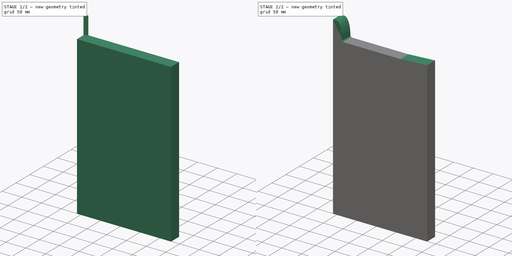
[diagram: build sequence overview — one tinted view per stage of 2, left to right]
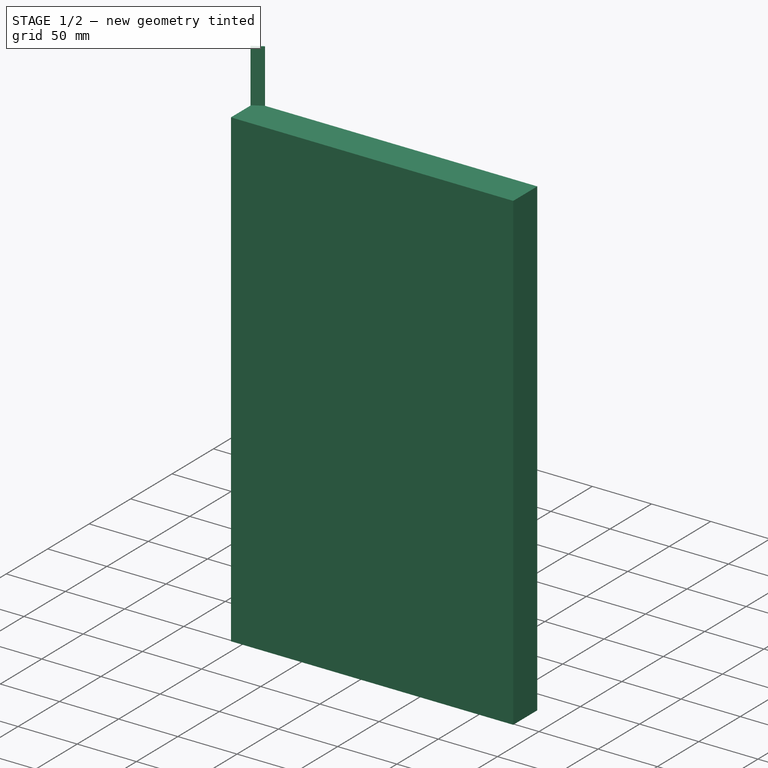
[diagram: stage 1 of 2 — iso view after this stage's code; geometry added in this stage tinted green]
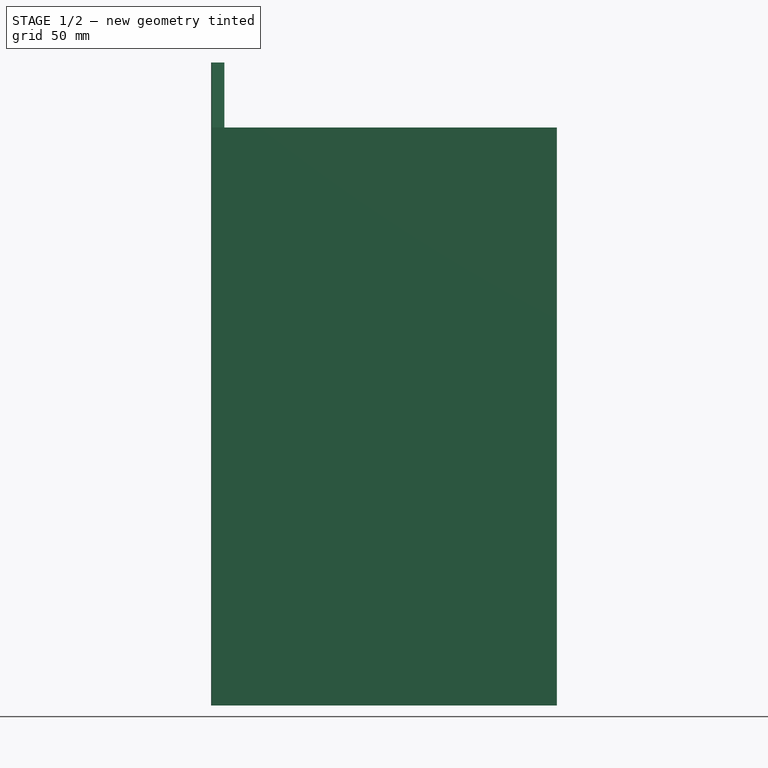
[diagram: stage 1 of 2 — front view after this stage's code; geometry added in this stage tinted green]
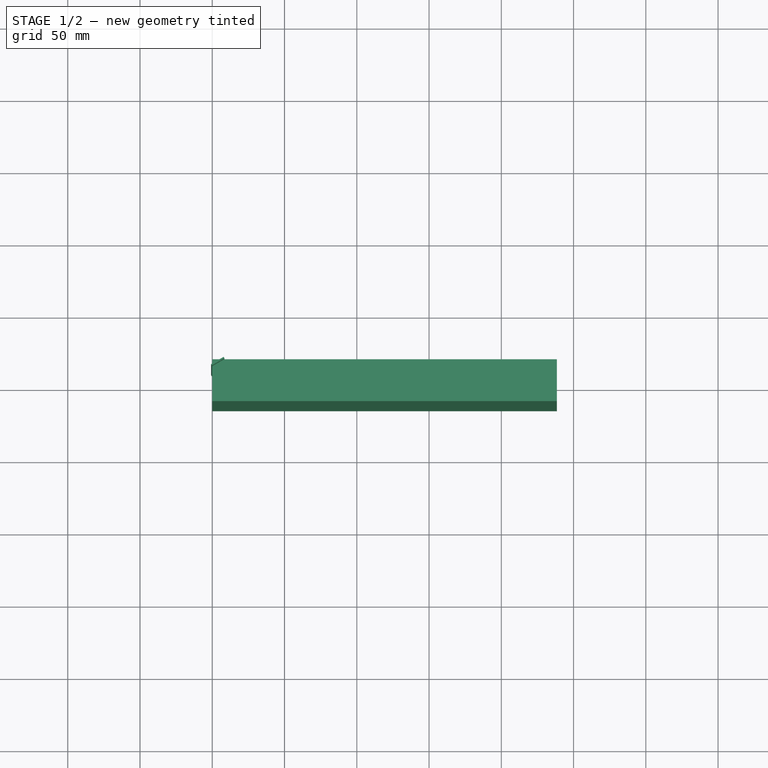
[diagram: stage 1 of 2 — top view after this stage's code; geometry added in this stage tinted green]
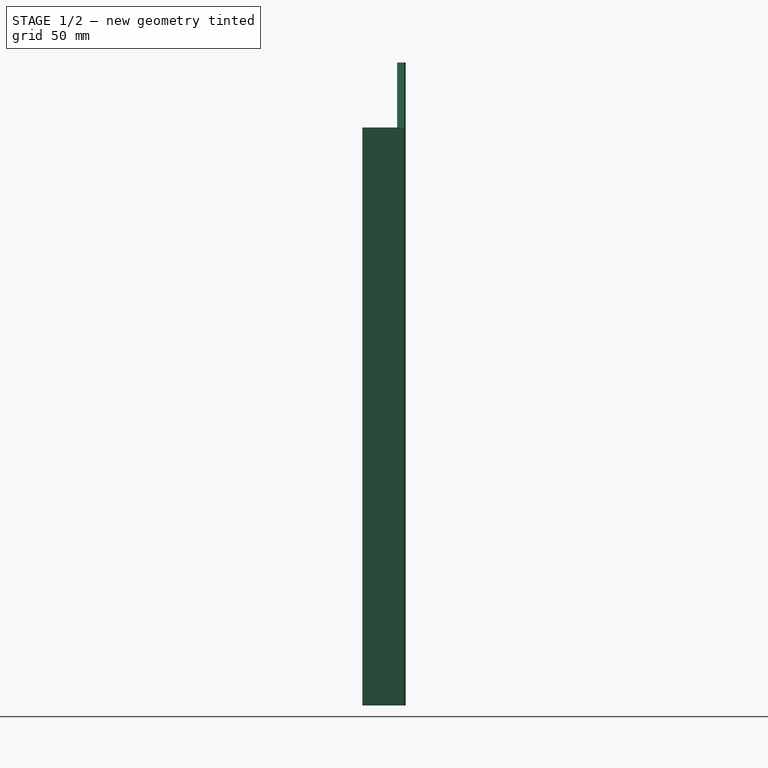
[diagram: stage 1 of 2 — right view after this stage's code; geometry added in this stage tinted green]
FCSTD DOCUMENT  (FreeCAD 1.1R38827 (Git))
Label: composit_stand3_base_part1_main
License: All rights reserved
LicenseURL: http://en.wikipedia.org/wiki/All_rights_reserved
objects: Part::FeaturePython×32, Sketcher::SketchObject×7, App::Link×5, Part::Extrusion×3, PartDesign::SubShapeBinder×2, Part::MultiFuse×1, Part::Feature×1
note: 53 computed .brp shape members not serialized (recipe doc carries the construction recipe); baked Part::Feature solids carry a one-line shape summary decoded from their .brp
EXTERNAL_REF file=composit_stand3_main.FCStd obj=Sketch
EXTERNAL_REF file=composit_stand3_main.FCStd obj=LinearArray
EXTERNAL_REF file=../module.FCStd obj=Sketch
EXTERNAL_REF file=composit_stand3_sink_main.FCStd obj=Sketch001
EXTERNAL_REF file=composit_stand3_bottom_shield_main.FCStd obj=Placment
EXTERNAL_REF file=composit_stand3_bottom_shield_main.FCStd obj=LinearArray
EXTERNAL_REF file=composit_stand3_sink_main.FCStd obj=Sketch005

FEATURE [PartDesign::SubShapeBinder] Binder
  BindCopyOnChange = 0
  BindMode = 0
  ClaimChildren = true
  Fuse = false
  MakeFace = false
  OffsetFill = false
  OffsetIntersection = false
  OffsetJoinType = 0
  OffsetOpenResult = false
  PartialLoad = false
  Relative = false
  Support = -> [<external composit_stand3_main.FCStd>#Sketch]
  _Version = 2
FEATURE [Sketcher::SketchObject] Sketch
  ArcFitTolerance = 0
  ExternalGeometry = -> [Binder]
  FullyConstrained = true
  MakeInternals = false
  sketch-geometry (2):
    g0: LineSegment StartX=8.37158 StartY=14.5 StartZ=0 EndX=4.90748 EndY=14.5 EndZ=0
    g1: LineSegment StartX=4.90748 StartY=14.5 StartZ=0 EndX=-2.59252 EndY=27.4904 EndZ=0
  constraints (7):
    c: Horizontal(g0)
    c: Coincident(g0,g1)
    c: Angle(g1) = 2.0944
    c: Coincident(g0,g-3)
    c: Distance(g0,g1) = 3
    c: Distance(g1) = 15
    c: DistanceX(g0) = 4.90748  'x_offset'
FEATURE [Part::FeaturePython] LinearArray  # WARN: FeaturePython — macro-defined, semantics opaque (R4)
  Alignment = 0
  CellStart = A1
  Count = 11
  Dir = (0,0,-1)
  DirIsDriven = true
  DistributionLaw = 0
  DrivenProperty = 1
  EndInclusive = true
  ExposePlacement = false
  GeneratorMode = 1
  MarkerShape = 1
  MarkerSize = 0
  NumElements = 11
  OrientMode = 0
  Point = (0,0,0)
  PointIsDriven = true
  Reverse = false
  SpanEnd = 827
  SpanStart = 27
  Step = 80
  Type = lattice2LinearArray.LinearArray
  VSGVersion = 1
  Values = 27.0 | 107.0 | 187.0 | 267.0 | 347.0 | 427.0 | 507.0 | 587.0 | 667.0 | 747.0 | 827.0
  ValuesSource = 2
  isLattice = 1
  expr: SpanEnd = Step * (Count - 1) * 1 mm + SpanStart
FEATURE [App::Link] Link  label="modules_placement_x"
  LinkTransform = true
  LinkedObject = -> <external composit_stand3_main.FCStd>#LinearArray
FEATURE [Part::FeaturePython] Placment  label="top_placement"  # WARN: FeaturePython — macro-defined, semantics opaque (R4)
  AttacherType = Attacher::AttachEngine3D
  ExposePlacement = true
  MarkerShape = 1
  MarkerSize = 200
  NumElements = 1
  Placement = pos=(0,0,1428) rot=(0,0,1;0rad)
  Type = lattice2AttachablePlacement.AttachablePlacement
  isLattice = 1
FEATURE [Part::FeaturePython] Populate  label="Populate modules_placement_x with LinearArray"  # WARN: FeaturePython — macro-defined, semantics opaque (R4)
  Copying = 0
  ExposePlacement = false
  MarkerShape = 1
  MarkerSize = 0
  NumElements = 22
  Object = -> LinearArray
  OutputCompounding = 0
  PlacementsTo = -> Link
  Referencing = 0
  Type = lattice2PopulateCopies.LatticePopulateCopies
  isLattice = 1
FEATURE [Part::FeaturePython] Populate001  label="Populate Placment with Populate modules_placement_x with LinearArray"  # WARN: FeaturePython — macro-defined, semantics opaque (R4)
  Copying = 0
  ExposePlacement = false
  MarkerShape = 1
  MarkerSize = 0
  NumElements = 22
  Object = -> Populate
  OutputCompounding = 0
  PlacementsTo = -> Placment
  Referencing = 0
  Type = lattice2PopulateCopies.LatticePopulateCopies
  isLattice = 1
FEATURE [Part::FeaturePython] Placment001  # WARN: FeaturePython — macro-defined, semantics opaque (R4)
  AttacherType = Attacher::AttachEngine3D
  ExposePlacement = true
  MarkerShape = 1
  MarkerSize = 50
  NumElements = 1
  Placement = pos=(0,0,0) rot=(0,0.707107,0.707107;3.14159rad)
  Type = lattice2AttachablePlacement.AttachablePlacement
  isLattice = 1
FEATURE [Part::FeaturePython] Populate002  label="Populate Populate Placment with Populate modules_placement_x with LinearArray with Placment001"  # WARN: FeaturePython — macro-defined, semantics opaque (R4)
  Copying = 0
  ExposePlacement = false
  MarkerShape = 1
  MarkerSize = 0
  NumElements = 22
  Object = -> Placment001
  OutputCompounding = 0
  PlacementsTo = -> Populate001
  Referencing = 0
  Type = lattice2PopulateCopies.LatticePopulateCopies
  isLattice = 1
FEATURE [Part::FeaturePython] Placment002  label="sink_placement"  # WARN: FeaturePython — macro-defined, semantics opaque (R4)
  AttacherType = Attacher::AttachEngine3D
  ExposePlacement = true
  MarkerShape = 1
  MarkerSize = 50
  NumElements = 1
  Placement = pos=(8.37158,14.5,410) rot=(0,0,1;1.0472rad)
  Type = lattice2AttachablePlacement.AttachablePlacement
  isLattice = 1
  expr: .Placement.Base.x = <<composit_stand3_main>>#<<main_sketch>>.Constraints.end_width / 2 / tan(60)
  expr: .Placement.Base.y = <<composit_stand3_main>>#<<main_sketch>>.Constraints.end_width / 2
FEATURE [App::Link] Link001  label="module_holes"
  LinkedObject = -> <external ../module.FCStd>#Sketch
FEATURE [Sketcher::SketchObject] Sketch001  label="basin_cut_top_sketch"
  ArcFitTolerance = 0
  FullyConstrained = true
  MakeInternals = false
  Placement = pos=(0,0,400) rot=(1,0,0;1.5708rad)
  expr: .Placement.Base.z = <<basin_cut_sketch>>.Constraints.height
  expr: Constraints[26] = <<basin_cut_sketch>>.Constraints.length
  expr: Constraints[28] = <<composit_stand3_main>>#<<main_sketch>>.Constraints.x_face_offset + 0.5 mm
  expr: Constraints[30] = <<composit_stand3_sink_main>>#<<side_bottom_edge>>.Constraints.angle
  sketch-geometry (14):
    g0: ArcOfEllipse CenterX=8.87158 CenterY=5 CenterZ=0 NormalX=0 NormalY=0 NormalZ=1 MajorRadius=40 MinorRadius=15 AngleXU=1.5708 StartAngle=4.71239 EndAngle=6.28319
    g1: LineSegment [constr] StartX=8.87158 StartY=45 StartZ=0 EndX=8.87158 EndY=-35 EndZ=0
    g2: LineSegment [constr] StartX=-6.12842 StartY=5 StartZ=0 EndX=23.8716 EndY=5 EndZ=0
    g3: GeomPoint [constr] X=8.87158 Y=42.081 Z=0
    g4: GeomPoint [constr] X=8.87158 Y=-32.081 Z=0
    g5: ArcOfCircle CenterX=28.8716 CenterY=5 CenterZ=0 NormalX=0 NormalY=0 NormalZ=1 AngleXU=0 Radius=5 StartAngle=3.14159 EndAngle=4.71239
    g6: LineSegment StartX=28.8716 StartY=0 StartZ=0 EndX=0 EndY=0 EndZ=0
    g7: LineSegment StartX=0 StartY=0 StartZ=0 EndX=0 EndY=45 EndZ=0
    g8: LineSegment StartX=0 StartY=45 StartZ=0 EndX=8.87158 EndY=45 EndZ=0
    g9: LineSegment StartX=238.446 StartY=3.98838 StartZ=0 EndX=238.446 EndY=0 EndZ=0
    g10: LineSegment StartX=238.446 StartY=0 StartZ=0 EndX=170.25 EndY=0 EndZ=0
    g11: LineSegment StartX=170.836 StartY=0.0172058 StartZ=0 EndX=238.446 EndY=3.98838 EndZ=0
    g12: ArcOfCircle CenterX=170.25 CenterY=10 CenterZ=0 NormalX=0 NormalY=0 NormalZ=1 AngleXU=0 Radius=10 StartAngle=4.71239 EndAngle=4.77106
    g13: LineSegment [constr] StartX=0 StartY=0 StartZ=0 EndX=238.446 EndY=14.0056 EndZ=0
  constraints (31):
    c: InternalAlignment(g1-g4 -> g0) x4
    c: Horizontal(g2)
    c: PointOnObject(g5,g-1)
    c: Tangent(g5,g0) = 1.5708
    c: Coincident(g6,g7)
    c: PointOnObject(g7,g-2)
    c: Vertical(g7)
    c: Coincident(g7,g8)
    c: Horizontal(g8)
    c: Tangent(g8,g0) = 1.5708
    c: Radius(g5) = 5
    c: Tangent(g5,g6) = 1.5708
    c: Horizontal(g6)
    c: DistanceY(g7) = 45  'sink_cut_height'
    c: Horizontal(g0,g0)
    c: DistanceX(g2,g2) = 30
    c: PointOnObject(g10,g-1)
    c: Coincident(g11,g9)
    c: PointOnObject(g9,g-1)
    c: Vertical(g9)
    c: Coincident(g9,g10)
    c: Tangent(g12,g10) = 1.5708
    c: Tangent(g12,g11) = -1.5708
    c: DistanceX(g9) = 238.446
    c: Radius(g12) = 10
    c: DistanceX(g0) = 8.87158
    c: Coincident(g13,g6)
    c: Angle(g13) = 0.0586697
    c: Vertical(g9,g13)
    c: Parallel(g11,g13)
    c: Distance(g9,g13) = 10
FEATURE [Part::FeaturePython] Placment003  label="bottom_fix_placement"  # WARN: FeaturePython — macro-defined, semantics opaque (R4)
  AttacherType = Attacher::AttachEngine3D
  AttachmentOffset = pos=(0,0,0) rot=(0,0,1;1.5708rad)
  ExposePlacement = true
  MarkerShape = 1
  MarkerSize = 50
  NumElements = 1
  Placement = pos=(294.4,0,0) rot=(0,0,1;1.5708rad)
  Type = lattice2AttachablePlacement.AttachablePlacement
  isLattice = 1
FEATURE [Sketcher::SketchObject] Sketch002  label="leg_amplifier"
  ArcFitTolerance = 0
  ExternalGeometry = -> [Binder]
  FullyConstrained = true
  MakeInternals = false
  Placement = pos=(238.046,0,0) rot=(0,0,1;0rad)
  expr: .Placement.Base.x = <<basin_cut_sketch>>.Constraints.length - 0.4 mm
  sketch-geometry (5):
    g0: LineSegment StartX=10 StartY=-14.5 StartZ=0 EndX=0 EndY=-14.5 EndZ=0
    g1: LineSegment StartX=0 StartY=-14.5 StartZ=0 EndX=0 EndY=11.5 EndZ=0
    g2: LineSegment StartX=0 StartY=11.5 StartZ=0 EndX=15 EndY=11.5 EndZ=0
    g3: LineSegment [constr] StartX=113.826 StartY=14.5 StartZ=0 EndX=113.826 EndY=0 EndZ=0
    g4: LineSegment [constr] StartX=113.826 StartY=0 StartZ=0 EndX=113.826 EndY=-14.5 EndZ=0
  constraints (16):
    c: Horizontal(g0)
    c: Coincident(g0,g1)
    c: Vertical(g1)
    c: Coincident(g1,g2)
    c: Horizontal(g2)
    c: DistanceY(g1,g-3) = 3
    c: Coincident(g-3,g3)
    c: PointOnObject(g3,g-1)
    c: Vertical(g3)
    c: Coincident(g3,g4)
    c: Vertical(g4)
    c: Equal(g4,g3)
    c: Horizontal(g4,g0)
    c: DistanceX(g2,g2) = 15
    c: DistanceX(g0,g0) = 10
    c: PointOnObject(g-1,g1)
FEATURE [Part::FeaturePython] LinearArray001  # WARN: FeaturePython — macro-defined, semantics opaque (R4)
  Alignment = 0
  CellStart = A1
  Count = 5
  Dir = (1,0,0)
  DirIsDriven = true
  DistributionLaw = 0
  DrivenProperty = 1
  EndInclusive = true
  ExposePlacement = false
  GeneratorMode = 0
  MarkerShape = 1
  MarkerSize = 0
  NumElements = 5
  OrientMode = 1
  Point = (0,0,0)
  PointIsDriven = true
  Reverse = false
  SpanEnd = 50
  SpanStart = 0
  Step = 12.5
  Type = lattice2LinearArray.LinearArray
  VSGVersion = 1
  Values = 0.0 | 12.5 | 25.0 | 37.5 | 50.0
  ValuesSource = 2
  isLattice = 1
FEATURE [Part::FeaturePython] Placment004  # WARN: FeaturePython — macro-defined, semantics opaque (R4)
  AttacherType = Attacher::AttachEngine3D
  AttachmentOffset = pos=(-3,261,7) rot=(-0.57735,-0.57735,0.57735;2.0944rad)
  AttachmentSupport = -> [Sketch]
  ExposePlacement = true
  MapMode = 7
  MarkerShape = 1
  MarkerSize = 5
  NumElements = 1
  Placement = pos=(-1.6906,19.9282,261) rot=(0.250563,-0.935113,0.250563;1.63783rad)
  Type = lattice2AttachablePlacement.AttachablePlacement
  isLattice = 1
FEATURE [Part::FeaturePython] Populate004  label="Populate Placment004 with LinearArray001"  # WARN: FeaturePython — macro-defined, semantics opaque (R4)
  Copying = 0
  ExposePlacement = false
  MarkerShape = 1
  MarkerSize = 0
  NumElements = 5
  Object = -> LinearArray001
  OutputCompounding = 0
  PlacementsTo = -> Placment004
  Referencing = 0
  Type = lattice2PopulateCopies.LatticePopulateCopies
  isLattice = 1
FEATURE [Sketcher::SketchObject] Sketch003  label="basin_cut_sketch"
  ArcFitTolerance = 0
  FullyConstrained = true
  MakeInternals = false
  Placement = pos=(0,0,0) rot=(1,0,0;1.5708rad)
  expr: .Constraints.length = 206.5 / sin(60)
  sketch-geometry (4):
    g0: LineSegment StartX=0 StartY=0 StartZ=0 EndX=238.446 EndY=0 EndZ=0
    g1: LineSegment StartX=238.446 StartY=0 StartZ=0 EndX=238.446 EndY=400 EndZ=0
    g2: LineSegment StartX=238.446 StartY=400 StartZ=0 EndX=0 EndY=400 EndZ=0
    g3: LineSegment StartX=0 StartY=400 StartZ=0 EndX=0 EndY=0 EndZ=0
  constraints (11):
    c: Coincident(g0,g1)
    c: Coincident(g1,g2)
    c: Coincident(g2,g3)
    c: Coincident(g3,g0)
    c: Horizontal(g0)
    c: Horizontal(g2)
    c: Vertical(g1)
    c: Vertical(g3)
    c: Coincident(g0,g-1)
    c: DistanceY(g3,g3) = 400  'height'
    c: DistanceX(g0,g0) = 238.446  'length'
FEATURE [Part::Extrusion] Extrude001
  Base = -> Sketch003
  Dir = (0,-1,2e-16)
  DirMode = 2
  FaceMakerClass = Part::FaceMakerBullseye
  FaceMakerMode = 3
  LengthFwd = 29
  LengthRev = 0
  Solid = true
  Symmetric = true
  expr: LengthFwd = <<composit_stand3_main>>#<<main_sketch>>.Constraints.end_width
FEATURE [Sketcher::SketchObject] Sketch004
  ArcFitTolerance = 0
  FullyConstrained = true
  MakeInternals = false
  Placement = pos=(8.37158,14.5,0) rot=(0.774597,-0.447214,-0.447214;1.82348rad)
  expr: .Placement.Base.x = composit_stand3_main#<<main_sketch>>.Constraints.x_face_offset
  expr: Constraints[9] = <<basin_cut_sketch>>.Constraints.height + <<basin_cut_top_sketch>>.Constraints.sink_cut_height
  sketch-geometry (4):
    g0: LineSegment StartX=0 StartY=0 StartZ=0 EndX=0 EndY=445 EndZ=0
    g1: LineSegment StartX=0 StartY=445 StartZ=0 EndX=-1 EndY=445 EndZ=0
    g2: LineSegment StartX=-1 StartY=445 StartZ=0 EndX=-1 EndY=0 EndZ=0
    g3: LineSegment StartX=-1 StartY=0 StartZ=0 EndX=0 EndY=0 EndZ=0
  constraints (11):
    c: Coincident(g0,g1)
    c: Coincident(g1,g2)
    c: Coincident(g2,g3)
    c: Coincident(g3,g0)
    c: Vertical(g0)
    c: Vertical(g2)
    c: Horizontal(g1)
    c: Horizontal(g3)
    c: Coincident(g0,g-1)
    c: DistanceY(g0,g0) = 445
    c: DistanceX(g3,g3) = 1
FEATURE [Part::Extrusion] Extrude003
  Base = -> Sketch004
  Dir = (-0.866025,-0.5,2e-16)
  DirMode = 2
  FaceMakerClass = Part::FaceMakerBullseye
  FaceMakerMode = 3
  LengthFwd = 10
  LengthRev = 0
  Solid = true
  Symmetric = false
FEATURE [App::Link] Link002  label="edge_placement"
  LinkTransform = true
  LinkedObject = -> <external composit_stand3_bottom_shield_main.FCStd>#Placment
FEATURE [App::Link] Link003  label="fix_placements"
  LinkTransform = true
  LinkedObject = -> <external composit_stand3_bottom_shield_main.FCStd>#LinearArray
FEATURE [Sketcher::SketchObject] Sketch005  label="shield_fix_hole_sketch"
  ArcFitTolerance = 0
  FullyConstrained = true
  MakeInternals = false
  sketch-geometry (5):
    g0: LineSegment StartX=-3.2 StartY=-26.4022 StartZ=0 EndX=0 EndY=-26.4022 EndZ=0
    g1: LineSegment StartX=0 StartY=-26.4022 StartZ=0 EndX=0 EndY=26.4022 EndZ=0
    g2: LineSegment StartX=0 StartY=26.4022 StartZ=0 EndX=-3.2 EndY=26.4022 EndZ=0
    g3: LineSegment StartX=-3.2 StartY=26.4022 StartZ=0 EndX=-3.2 EndY=-26.4022 EndZ=0
    g4: GeomPoint [constr] X=-1.6 Y=0 Z=0
  constraints (13):
    c: Coincident(g0,g1)
    c: Coincident(g1,g2)
    c: Coincident(g2,g3)
    c: Coincident(g3,g0)
    c: Horizontal(g0)
    c: Horizontal(g2)
    c: Vertical(g1)
    c: Vertical(g3)
    c: Symmetric(g2,g0,g4)
    c: PointOnObject(g4,g-1)
    c: PointOnObject(g1,g-2)
    c: DistanceX(g0,g1) = 3.2
    c: DistanceY(g0,g1) = 52.8044
FEATURE [Part::FeaturePython] Placment005  label="shield_placement"  # WARN: FeaturePython — macro-defined, semantics opaque (R4)
  AttacherType = Attacher::AttachEngine3D
  ExposePlacement = true
  MarkerShape = 1
  MarkerSize = 50
  NumElements = 1
  Placement = pos=(0,0,0) rot=(0,0,1;1.0472rad)
  Type = lattice2AttachablePlacement.AttachablePlacement
  isLattice = 1
FEATURE [Part::FeaturePython] Placment006  label="Custom"  # WARN: FeaturePython — macro-defined, semantics opaque (R4)
  ExposePlacement = true
  FlipZ = false
  Invert = false
  MarkerShape = 1
  MarkerSize = 50
  NumElements = 1
  Placement = pos=(0,0,0) rot=(0.774597,0.447214,0.447214;1.82348rad)
  PlacementChoice = 0
  Type = lattice2Placement.LatticePlacement
  isLattice = 1
FEATURE [Part::FeaturePython] Populate008  label="Populate edge_placement with fix_placements"  # WARN: FeaturePython — macro-defined, semantics opaque (R4)
  Copying = 0
  ExposePlacement = false
  MarkerShape = 1
  MarkerSize = 0
  NumElements = 4
  Object = -> Link003
  OutputCompounding = 0
  PlacementsTo = -> Link002
  Referencing = 0
  Type = lattice2PopulateCopies.LatticePopulateCopies
  isLattice = 1
FEATURE [Part::FeaturePython] Populate009  label="Populate Populate edge_placement with fix_placements with Custom"  # WARN: FeaturePython — macro-defined, semantics opaque (R4)
  Copying = 0
  ExposePlacement = false
  MarkerShape = 1
  MarkerSize = 0
  NumElements = 4
  Object = -> Placment006
  OutputCompounding = 0
  PlacementsTo = -> Populate008
  Referencing = 0
  Type = lattice2PopulateCopies.LatticePopulateCopies
  isLattice = 1
FEATURE [Part::FeaturePython] Mirror002  label="Mirror002 of Populate Populate edge_placement with fix_placements with Custom"  # WARN: FeaturePython — macro-defined, semantics opaque (R4)
  ExposePlacement = false
  FlipX = false
  FlipY = true
  FlipZ = false
  MarkerShape = 1
  MarkerSize = 0
  NumElements = 4
  Object = -> Populate009
  ObjectTraversal = 0
  Type = lattice2Mirror.LatticeMirror
  isLattice = 1
FEATURE [Part::FeaturePython] Populate011  label="Populate shield_placement with Mirror002 of Populate Populate edge_placement with fix_placements with Custom"  # WARN: FeaturePython — macro-defined, semantics opaque (R4)
  Copying = 0
  ExposePlacement = false
  MarkerShape = 1
  MarkerSize = 0
  NumElements = 4
  Object = -> Mirror002
  OutputCompounding = 0
  PlacementsTo = -> Placment005
  Referencing = 0
  Type = lattice2PopulateCopies.LatticePopulateCopies
  isLattice = 1
FEATURE [Part::FeaturePython] Join002  label="shield_fix_holes"  # WARN: FeaturePython — macro-defined, semantics opaque (R4)
  ExposePlacement = false
  Interleave = false
  Links = -> [Populate011]
  MarkerShape = 1
  MarkerSize = 0
  NumElements = 4
  Type = lattice2JoinArrays.JoinArrays
  isLattice = 1
FEATURE [Part::FeaturePython] LinearArray002  label="leg_fix_placements"  # WARN: FeaturePython — macro-defined, semantics opaque (R4)
  Alignment = 0
  CellStart = A1
  Count = 3
  Dir = (1,0,0)
  DirIsDriven = true
  DistributionLaw = 0
  DrivenProperty = 1
  EndInclusive = true
  ExposePlacement = false
  GeneratorMode = 0
  MarkerShape = 1
  MarkerSize = 0
  NumElements = 3
  OrientMode = 1
  Placement = pos=(245,14.5,0) rot=(0.57735,0.57735,0.57735;4.18879rad)
  Point = (0,0,0)
  PointIsDriven = true
  Reverse = false
  SpanEnd = 390
  SpanStart = 20
  Step = 185
  Type = lattice2LinearArray.LinearArray
  VSGVersion = 1
  Values = 20.0 | 205.0 | 390.0
  ValuesSource = 2
  isLattice = 1
  expr: .Placement.Base.y = <<composit_stand3_main>>#<<main_sketch>>.Constraints.end_width / 2
FEATURE [Part::FeaturePython] Placment007  # WARN: FeaturePython — macro-defined, semantics opaque (R4)
  AttacherType = Attacher::AttachEngine3D
  AttachmentOffset = pos=(3,0,4.42) rot=(0.57735,0.57735,0.57735;2.0944rad)
  AttachmentSupport = -> [Sketch]
  ExposePlacement = true
  MapMode = 7
  MarkerShape = 1
  MarkerSize = 20
  NumElements = 1
  Placement = pos=(2.21555,25.1625,0) rot=(0.694747,0.186157,0.694747;3.50969rad)
  Type = lattice2AttachablePlacement.AttachablePlacement
  isLattice = 1
FEATURE [Part::FeaturePython] Placment008  label="magnet_fix_placement"  # WARN: FeaturePython — macro-defined, semantics opaque (R4)
  AttacherType = Attacher::AttachEngine3D
  ExposePlacement = true
  MarkerShape = 1
  MarkerSize = 50
  NumElements = 1
  Placement = pos=(308.872,-14.5,248) rot=(1,0,0;1.5708rad)
  Type = lattice2AttachablePlacement.AttachablePlacement
  isLattice = 1
  expr: .Placement.Base.x = 300.5 mm + <<composit_stand3_main>>#<<main_sketch>>.Constraints.x_face_offset
  expr: .Placement.Base.y = -<<composit_stand3_main>>#<<main_sketch>>.Constraints.end_width / 2
FEATURE [Part::Feature] Body159  label="part1_material_0.30ansi002"
  Placement = pos=(0,0,0) rot=(0,0,-1;1.5708rad)
  shape: bbox 356 x 59.31 x 1428 mm, 498 faces (baked)
FEATURE [Part::FeaturePython] LinearArray003  # WARN: FeaturePython — macro-defined, semantics opaque (R4)
  Alignment = 0
  CellStart = A1
  Count = 5
  Dir = (1,0,0)
  DirIsDriven = true
  DistributionLaw = 0
  DrivenProperty = 1
  EndInclusive = true
  ExposePlacement = false
  GeneratorMode = 0
  MarkerShape = 1
  MarkerSize = 0
  NumElements = 5
  OrientMode = 1
  Point = (0,0,0)
  PointIsDriven = true
  Reverse = false
  SpanEnd = 1343
  SpanStart = 523
  Step = 205
  Type = lattice2LinearArray.LinearArray
  VSGVersion = 1
  Values = 523.0 | 728.0 | 933.0 | 1138.0 | 1343.0
  ValuesSource = 2
  isLattice = 1
FEATURE [Part::FeaturePython] Populate012  label="parts_fix_holes"  # WARN: FeaturePython — macro-defined, semantics opaque (R4)
  Copying = 0
  ExposePlacement = false
  MarkerShape = 1
  MarkerSize = 0
  NumElements = 5
  Object = -> LinearArray003
  OutputCompounding = 0
  PlacementsTo = -> Placment007
  Referencing = 0
  Type = lattice2PopulateCopies.LatticePopulateCopies
  isLattice = 1
FEATURE [Part::FeaturePython] Placment009  # WARN: FeaturePython — macro-defined, semantics opaque (R4)
  AttacherType = Attacher::AttachEngine3D
  ExposePlacement = true
  MarkerShape = 1
  MarkerSize = 20
  NumElements = 1
  Placement = pos=(181.372,0,0) rot=(0,0,1;0rad)
  Type = lattice2AttachablePlacement.AttachablePlacement
  isLattice = 1
  expr: .Placement.Base.x = <<modules_placement_x>>.LinkedObject.Placement.Base.x * 1 mm + (<<modules_placement_x>>.LinkedObject.SpanStart + <<modules_placement_x>>.LinkedObject.SpanEnd) / 2
FEATURE [Part::FeaturePython] PolarArray  # WARN: FeaturePython — macro-defined, semantics opaque (R4)
  Alignment = 0
  AttacherType = Attacher::AttachEngine3D
  CellStart = A1
  Count = 2
  DistributionLaw = 0
  EndInclusive = false
  ExposePlacement = false
  FlipX = false
  FlipZ = false
  GeneratorMode = 0
  MarkerShape = 1
  MarkerSize = 50
  NumElements = 2
  OrientMode = 2
  Radius = 0
  Reverse = false
  SpanEnd = 360
  SpanStart = 0
  Step = 180
  Type = lattice2PolarArray2.PolarArray
  UseArcRadius = false
  UseArcRange = 0
  VSGVersion = 1
  Values = 0.0 | 180.0
  ValuesSource = 2
  isLattice = 1
FEATURE [Part::FeaturePython] Populate013  label="Populate PolarArray with Populate Populate Placment with Populate modules_placement_x with LinearArray with Placment001"  # WARN: FeaturePython — macro-defined, semantics opaque (R4)
  Copying = 0
  ExposePlacement = false
  MarkerShape = 1
  MarkerSize = 0
  NumElements = 44
  Object = -> Populate002
  OutputCompounding = 0
  PlacementsFrom = -> Placment009
  PlacementsTo = -> PolarArray
  Referencing = 3
  Type = lattice2PopulateCopies.LatticePopulateCopies
  isLattice = 1
FEATURE [Part::FeaturePython] Populate014  label="Populate Placment009 with Populate PolarArray with Populate Populate Placment with Populate modules_placement_x with LinearArray with Placment001"  # WARN: FeaturePython — macro-defined, semantics opaque (R4)
  Copying = 0
  ExposePlacement = false
  MarkerShape = 1
  MarkerSize = 0
  NumElements = 44
  Object = -> Populate013
  OutputCompounding = 0
  PlacementsTo = -> Placment009
  Referencing = 0
  Type = lattice2PopulateCopies.LatticePopulateCopies
  isLattice = 1
FEATURE [Part::FeaturePython] Join  label="modules_placements"  # WARN: FeaturePython — macro-defined, semantics opaque (R4)
  ExposePlacement = false
  Interleave = false
  Links = -> [Populate014]
  MarkerShape = 1
  MarkerSize = 0
  NumElements = 44
  Type = lattice2JoinArrays.JoinArrays
  isLattice = 1
FEATURE [App::Link] Link004  label="side_holes_half_sketch"
  LinkTransform = true
  LinkedObject = -> <external composit_stand3_sink_main.FCStd>#Sketch005
FEATURE [PartDesign::SubShapeBinder] Binder001
  BindCopyOnChange = 0
  BindMode = 0
  ClaimChildren = false
  Fuse = false
  MakeFace = true
  OffsetFill = false
  OffsetIntersection = false
  OffsetJoinType = 0
  OffsetOpenResult = false
  PartialLoad = false
  Relative = true
  Support = -> [Link004]
  _Version = 2
FEATURE [Sketcher::SketchObject] Sketch006
  ArcFitTolerance = 1e-06
  ExternalGeometry = -> [Binder001]
  FullyConstrained = true
  MakeInternals = false
  Placement = pos=(0,0,0) rot=(0.774597,0.447214,0.447214;1.82348rad)
  sketch-geometry (6):
    g0: Circle CenterX=13.8756 CenterY=84 CenterZ=0 NormalX=0 NormalY=0 NormalZ=1 AngleXU=0 Radius=1.7
    g1: Circle CenterX=173.002 CenterY=84 CenterZ=0 NormalX=0 NormalY=0 NormalZ=1 AngleXU=0 Radius=1.7
    g2: Circle CenterX=332.128 CenterY=84 CenterZ=0 NormalX=0 NormalY=0 NormalZ=1 AngleXU=0 Radius=1.7
    g3: Circle CenterX=332.128 CenterY=34 CenterZ=0 NormalX=0 NormalY=0 NormalZ=1 AngleXU=0 Radius=1.7
    g4: LineSegment [constr] StartX=13.8756 StartY=84 StartZ=0 EndX=14.3756 EndY=84 EndZ=0
    g5: LineSegment [constr] StartX=331.628 StartY=84 StartZ=0 EndX=332.128 EndY=84 EndZ=0
  constraints (15):
    c: Symmetric(g0,g2,g1)
    c: Horizontal(g0,g2)
    c: Coincident(g4,g0)
    c: Coincident(g4,g-3)
    c: Coincident(g5,g-4)
    c: Coincident(g5,g2)
    c: Equal(g4,g5)
    c: DistanceX(g4,g4) = 0.5
    c: Equal(g3,g2)
    c: Equal(g3,g1)
    c: Equal(g3,g0)
    c: Diameter(g3) = 3.4
    c: Horizontal(g4)
    c: Horizontal(g3,g-5)
    c: Vertical(g3,g2)
FEATURE [Part::FeaturePython] Downgrade  label="Edges of Sketch006"  # WARN: FeaturePython — macro-defined, semantics opaque (R4)
  Base = -> Sketch006
  Mode = 8
FEATURE [Part::FeaturePython] ArrayFromShape  label="Array from Edges of Sketch006"  # WARN: FeaturePython — macro-defined, semantics opaque (R4)
  CompoundTraversal = 1
  ExposePlacement = false
  MarkerShape = 1
  MarkerSize = 20
  NumElements = 4
  OrientElementIndex = 0
  OrientMode = 2
  ShapeLink = -> Downgrade
  TranslateElementIndex = 0
  TranslateMode = 3
  Type = lattice2ArrayFromShape.LatticeArrayFromShape
  isLattice = 1
FEATURE [Part::FeaturePython] Mirror  label="Mirror of Array from Edges of Sketch006"  # WARN: FeaturePython — macro-defined, semantics opaque (R4)
  ExposePlacement = false
  FlipX = false
  FlipY = true
  FlipZ = false
  MarkerShape = 1
  MarkerSize = 0
  NumElements = 4
  Object = -> ArrayFromShape
  ObjectTraversal = 0
  Type = lattice2Mirror.LatticeMirror
  isLattice = 1
FEATURE [Part::FeaturePython] Join003  label="sink_holes"  # WARN: FeaturePython — macro-defined, semantics opaque (R4)
  ExposePlacement = false
  Interleave = false
  Links = -> [ArrayFromShape,Mirror]
  MarkerShape = 1
  MarkerSize = 0
  NumElements = 8
  Type = lattice2JoinArrays.JoinArrays
  isLattice = 1

RESOLVED EXTERNAL PARTS (link-assembly join: the EXTERNAL_REF files above that resolve inside this repo's crawl, each included once):
---- part ../module.FCStd = doc fcstd_3955753b3a20 ----
FCSTD DOCUMENT  (FreeCAD 1.1R38827 (Git))
Label: module
License: All rights reserved
LicenseURL: http://en.wikipedia.org/wiki/All_rights_reserved
objects: Sketcher::SketchObject×2, Part::Feature×1, PartDesign::FeatureBase×1, PartDesign::Body×1, Spreadsheet::Sheet×1
note: 8 computed .brp shape members not serialized (recipe doc carries the construction recipe); baked Part::Feature solids carry a one-line shape summary decoded from their .brp

FEATURE [Part::Feature] Part__Feature  label="module002"
  shape: bbox 170 x 148 x 41.12 mm, 715 faces (baked)
FEATURE [Sketcher::SketchObject] Sketch  label="module_holes"
  ArcFitTolerance = 0
  FullyConstrained = true
  MakeInternals = false
  sketch-geometry (10):
    g0: LineSegment StartX=59.5 StartY=-3.5 StartZ=0 EndX=59.5 EndY=3.5 EndZ=0
    g1: LineSegment StartX=59.5 StartY=3.5 StartZ=0 EndX=72.5 EndY=3.5 EndZ=0
    g2: LineSegment StartX=72.5 StartY=3.5 StartZ=0 EndX=72.5 EndY=-3.5 EndZ=0
    g3: LineSegment StartX=72.5 StartY=-3.5 StartZ=0 EndX=59.5 EndY=-3.5 EndZ=0
    g4: GeomPoint [constr] X=66 Y=0 Z=0
    g5: LineSegment StartX=-72.5 StartY=-3.5 StartZ=0 EndX=-72.5 EndY=3.5 EndZ=0
    g6: LineSegment StartX=-72.5 StartY=3.5 StartZ=0 EndX=-59.5 EndY=3.5 EndZ=0
    g7: LineSegment StartX=-59.5 StartY=3.5 StartZ=0 EndX=-59.5 EndY=-3.5 EndZ=0
    g8: LineSegment StartX=-59.5 StartY=-3.5 StartZ=0 EndX=-72.5 EndY=-3.5 EndZ=0
    g9: GeomPoint [constr] X=-66 Y=0 Z=0
  constraints (25):
    c: Coincident(g0,g1)
    c: Coincident(g1,g2)
    c: Coincident(g2,g3)
    c: Coincident(g3,g0)
    c: Horizontal(g1)
    c: Horizontal(g3)
    c: Vertical(g0)
    c: Vertical(g2)
    c: Symmetric(g1,g0,g4)
    c: PointOnObject(g4,g-1)
    c: Coincident(g5,g6)
    c: Coincident(g6,g7)
    c: Coincident(g7,g8)
    c: Coincident(g8,g5)
    c: Horizontal(g6)
    c: Horizontal(g8)
    c: Vertical(g5)
    c: Vertical(g7)
    c: Symmetric(g6,g5,g9)
    c: Symmetric(g9,g4,g-2)
    c: Equal(g1,g6)
    c: Equal(g7,g2)
    c: DistanceX(g1,g1) = 13
    c: DistanceY(g2,g2) = 7
    c: DistanceX(g9,g4) = 132
FEATURE [PartDesign::FeatureBase] BaseFeature
  BaseFeature = -> Part__Feature
  Placement = pos=(0,0,0) rot=(0,0,1;1.5708rad)
  Suppressed = false
FEATURE [PartDesign::Body] Body  label="module_Body"
  AllowCompound = false
  BaseFeature = -> Part__Feature
  Group = -> [BaseFeature]
  Origin = -> Origin
  Tip = -> BaseFeature
FEATURE [Spreadsheet::Sheet] Spreadsheet  label="Properties"
  cells = B2(module_width)==148 mm; C2(module_height)==160 mm; D2(module_fixture_distance_x)==132 mm; E2(module_fixture_distance_y)==80 mm; F2(module_hole_x)==13 mm; G2(module_hole_y)==7 mm
FEATURE [Sketcher::SketchObject] Sketch001  label="module_holes001"
  ArcFitTolerance = 0
  FullyConstrained = true
  MakeInternals = false
  sketch-geometry (10):
    g0: LineSegment StartX=59 StartY=-3.5 StartZ=0 EndX=59 EndY=3.5 EndZ=0
    g1: LineSegment StartX=59 StartY=3.5 StartZ=0 EndX=73 EndY=3.5 EndZ=0
    g2: LineSegment StartX=73 StartY=3.5 StartZ=0 EndX=73 EndY=-3.5 EndZ=0
    g3: LineSegment StartX=73 StartY=-3.5 StartZ=0 EndX=59 EndY=-3.5 EndZ=0
    g4: GeomPoint [constr] X=66 Y=0 Z=0
    g5: LineSegment StartX=-73 StartY=-3.5 StartZ=0 EndX=-73 EndY=3.5 EndZ=0
    g6: LineSegment StartX=-73 StartY=3.5 StartZ=0 EndX=-59 EndY=3.5 EndZ=0
    g7: LineSegment StartX=-59 StartY=3.5 StartZ=0 EndX=-59 EndY=-3.5 EndZ=0
    g8: LineSegment StartX=-59 StartY=-3.5 StartZ=0 EndX=-73 EndY=-3.5 EndZ=0
    g9: GeomPoint [constr] X=-66 Y=0 Z=0
  constraints (25):
    c: Coincident(g0,g1)
    c: Coincident(g1,g2)
    c: Coincident(g2,g3)
    c: Coincident(g3,g0)
    c: Horizontal(g1)
    c: Horizontal(g3)
    c: Vertical(g0)
    c: Vertical(g2)
    c: Symmetric(g1,g0,g4)
    c: PointOnObject(g4,g-1)
    c: Coincident(g5,g6)
    c: Coincident(g6,g7)
    c: Coincident(g7,g8)
    c: Coincident(g8,g5)
    c: Horizontal(g6)
    c: Horizontal(g8)
    c: Vertical(g5)
    c: Vertical(g7)
    c: Symmetric(g6,g5,g9)
    c: Symmetric(g9,g4,g-2)
    c: Equal(g1,g6)
    c: Equal(g7,g2)
    c: DistanceX(g1,g1) = 14
    c: DistanceY(g2,g2) = 7
    c: DistanceX(g9,g4) = 132
---- part composit_stand3_bottom_shield_main.FCStd = doc fcstd_857f5020a186 ----
FCSTD DOCUMENT  (FreeCAD 1.1R38827 (Git))
Label: composit_stand3_bottom_shield_main
License: All rights reserved
LicenseURL: http://en.wikipedia.org/wiki/All_rights_reserved
objects: Sketcher::SketchObject×2, Part::FeaturePython×2, Part::Feature×1
note: 7 computed .brp shape members not serialized (recipe doc carries the construction recipe); baked Part::Feature solids carry a one-line shape summary decoded from their .brp
EXTERNAL_REF file=composit_stand3_main.FCStd obj=Sketch

FEATURE [Sketcher::SketchObject] Sketch  label="main_sketch"
  ArcFitTolerance = 0
  FullyConstrained = true
  MakeInternals = false
  expr: Constraints[5] = composit_stand3_main#<<main_sketch>>.Constraints.end_width / 2
  sketch-geometry (6):
    g0: LineSegment [constr] StartX=0 StartY=0 StartZ=0 EndX=168.8 EndY=292.37 EndZ=0
    g1: LineSegment [constr] StartX=168.8 StartY=292.37 StartZ=0 EndX=181.357 EndY=285.12 EndZ=0
    g2: LineSegment [constr] StartX=181.357 StartY=285.12 StartZ=0 EndX=174.606 EndY=302.427 EndZ=0
    g3: ArcOfCircle CenterX=-549.544 CenterY=0 CenterZ=0 NormalX=0 NormalY=0 NormalZ=1 AngleXU=0 Radius=784.545 StartAngle=0 EndAngle=0.370402
    g4: LineSegment [constr] StartX=181.357 StartY=285.12 StartZ=0 EndX=16.7432 EndY=0 EndZ=0
    g5: LineSegment [constr] StartX=181.794 StartY=283.998 StartZ=0 EndX=180.396 EndY=283.455 EndZ=0
  constraints (24):
    c: PointOnObject(g3,g-1)
    c: Coincident(g-1,g0)
    c: Coincident(g0,g1)
    c: Perpendicular(g1,g0)
    c: Angle(g0) = 1.0472
    c: Distance(g1) = 14.5
    c: PointOnObject(g2,g0)
    c: Angle(g2) = 1.94273  'angle'
    c: DistanceX(g3) = 235.001  'offset'
    c: Distance(g0) = 337.6
    c: Radius(g3) = 784.545  'r'
    c: Tangent(g2,g3)
    c: PointOnObject(g3,g-1)
    c: DistanceX(g1) = 181.357  'x'
    c: DistanceY(g1) = 285.12  'y'
    c: Coincident(g2,g1)
    c: Coincident(g1,g4)
    c: PointOnObject(g4,g-1)
    c: Parallel(g4,g0)
    c: PointOnObject(g1,g3)
    c: Coincident(g5,g3)
    c: PointOnObject(g5,g4)
    c: Perpendicular(g3,g5)
    c: Distance(g5) = 1.5
FEATURE [Part::FeaturePython] LinearArray  label="fix_placements"  # WARN: FeaturePython — macro-defined, semantics opaque (R4)
  Alignment = 0
  CellStart = A1
  Count = 4
  Dir = (0,0,1)
  DirIsDriven = true
  DistributionLaw = 0
  DrivenProperty = 1
  EndInclusive = true
  ExposePlacement = false
  GeneratorMode = 0
  MarkerShape = 1
  MarkerSize = 0
  NumElements = 4
  OrientMode = 0
  Point = (0,0,0)
  PointIsDriven = true
  Reverse = false
  SpanEnd = 390
  SpanStart = 35
  Step = 118.333
  Type = lattice2LinearArray.LinearArray
  VSGVersion = 1
  Values = 35.0 | 153.33333333333331 | 271.66666666666663 | 390.0
  ValuesSource = 2
  isLattice = 1
  expr: SpanEnd = 425 mm - SpanStart
FEATURE [Sketcher::SketchObject] Sketch001
  ArcFitTolerance = 0
  FullyConstrained = true
  MakeInternals = false
  sketch-geometry (6):
    g0: LineSegment StartX=11 StartY=0 StartZ=0 EndX=11 EndY=20 EndZ=0
    g1: LineSegment StartX=0 StartY=25 StartZ=0 EndX=0 EndY=0 EndZ=0
    g2: ArcOfCircle CenterX=6 CenterY=20 CenterZ=0 NormalX=0 NormalY=0 NormalZ=1 AngleXU=0 Radius=5 StartAngle=0 EndAngle=1.5708
    g3: GeomPoint [constr] X=11 Y=25 Z=0
    g4: LineSegment StartX=6 StartY=25 StartZ=0 EndX=0 EndY=25 EndZ=0
    g5: GeomPoint [constr] X=11 Y=-25 Z=0
  constraints (14):
    c: PointOnObject(g0,g-1)
    c: Vertical(g0)
    c: PointOnObject(g1,g-2)
    c: Coincident(g1,g-1)
    c: PointOnObject(g3,g0)
    c: Tangent(g0,g2) = -1.5708
    c: Horizontal(g4)
    c: PointOnObject(g3,g4)
    c: Tangent(g4,g2) = -1.5708
    c: Symmetric(g5,g3,g-1)
    c: DistanceY(g5,g3) = 50  'height'
    c: DistanceX(g0) = 11
    c: Radius(g2) = 5
    c: Coincident(g1,g4)
FEATURE [Part::Feature] Link008  label="sector_plexiglass_material_0.30ansi001"
  Placement = pos=(0,0,0) rot=(0,0,1;1.5708rad)
  shape: bbox 58.56 x 590.7 x 425 mm, 70 faces (baked)
FEATURE [Part::FeaturePython] Placment  label="edge_placement"  # WARN: FeaturePython — macro-defined, semantics opaque (R4)
  AttacherType = Attacher::AttachEngine3D
  ExposePlacement = true
  MarkerShape = 1
  MarkerSize = 50
  NumElements = 1
  Placement = pos=(181.357,285.12,0) rot=(0,0,1;0rad)
  Type = lattice2AttachablePlacement.AttachablePlacement
  isLattice = 1
  expr: .Placement.Base.x = <<main_sketch>>.Constraints.x
  expr: .Placement.Base.y = <<main_sketch>>.Constraints.y
---- part composit_stand3_main.FCStd = doc fcstd_90b2f18ea94f ----
FCSTD DOCUMENT  (FreeCAD 1.1R38827 (Git))
Label: composit_stand3_main
License: All rights reserved
LicenseURL: http://en.wikipedia.org/wiki/All_rights_reserved
objects: Part::Cylinder×2, Sketcher::SketchObject×1, Part::FeaturePython×1
note: 5 computed .brp shape members not serialized (recipe doc carries the construction recipe); baked Part::Feature solids carry a one-line shape summary decoded from their .brp

FEATURE [Sketcher::SketchObject] Sketch  label="main_sketch"
  ArcFitTolerance = 0
  FullyConstrained = true
  MakeInternals = false
  sketch-geometry (4):
    g0: LineSegment [constr] StartX=0 StartY=0 StartZ=0 EndX=8.37158 EndY=14.5 EndZ=0
    g1: LineSegment StartX=8.37158 StartY=14.5 StartZ=0 EndX=351.872 EndY=14.5 EndZ=0
    g2: LineSegment StartX=351.872 StartY=14.5 StartZ=0 EndX=351.872 EndY=0 EndZ=0
    g3: GeomPoint [constr] X=351.872 Y=-14.5 Z=0
  constraints (13):
    c: Coincident(g-1,g0)
    c: Horizontal(g1)
    c: Coincident(g1,g2)
    c: PointOnObject(g2,g-1)
    c: Vertical(g2)
    c: Angle(g0) = 1.0472
    c: DistanceX(g0,g1) = 343.5  'face_width'
    c: DistanceY(g3,g1) = 29  'end_width'
    c: Symmetric(g3,g1,g2)
    c: DistanceX(g0) = 8.37158  'x_face_offset'
    c: Coincident(g1,g0)
    c: Distance(g0) = 16.7432  'corner_distance'
    c: DistanceY(g0,g0) = 14.5
FEATURE [Part::FeaturePython] LinearArray  label="modules_placement_x"  # WARN: FeaturePython — macro-defined, semantics opaque (R4)
  Alignment = 0
  CellStart = A1
  Count = 2
  Dir = (1,0,0)
  DirIsDriven = true
  DistributionLaw = 0
  DrivenProperty = 1
  EndInclusive = true
  ExposePlacement = false
  GeneratorMode = 0
  MarkerShape = 1
  MarkerSize = 0
  NumElements = 2
  OrientMode = 1
  Placement = pos=(8.37158,14.5,0) rot=(0,0,1;0rad)
  Point = (0,0,0)
  PointIsDriven = true
  Reverse = false
  SpanEnd = 248
  SpanStart = 98
  Step = 150
  Type = lattice2LinearArray.LinearArray
  VSGVersion = 1
  Values = 98.0 | 248.0
  ValuesSource = 2
  isLattice = 1
  expr: .Placement.Base.x = <<main_sketch>>.Constraints.end_width / 2 / tan(60)
  expr: .Placement.Base.y = <<main_sketch>>.Constraints.end_width / 2
FEATURE [Part::Cylinder] Cylinder  label="hole_3.4mm"
  Angle = 360
  AttacherType = Attacher::AttachEngine3D
  FirstAngle = 0
  Height = 15
  Radius = 1.7
  SecondAngle = 0
FEATURE [Part::Cylinder] Cylinder001  label="hole_3.4mm_rev"
  Angle = 360
  AttacherType = Attacher::AttachEngine3D
  FirstAngle = 0
  Height = 15
  Placement = pos=(0,0,0) rot=(1,0,0;3.14159rad)
  Radius = 1.7
  SecondAngle = 0
---- part composit_stand3_sink_main.FCStd = doc fcstd_787f98b70bf1 ----
FCSTD DOCUMENT  (FreeCAD 1.1R38827 (Git))
Label: composit_stand3_sink_main
License: All rights reserved
LicenseURL: http://en.wikipedia.org/wiki/All_rights_reserved
objects: Sketcher::SketchObject×8, Part::FeaturePython×4, Part::Mirroring×1, PartDesign::Plane×1, Part::Feature×1, Spreadsheet::Sheet×1
note: 23 computed .brp shape members not serialized (recipe doc carries the construction recipe); baked Part::Feature solids carry a one-line shape summary decoded from their .brp
EXTERNAL_REF file=composit_stand3_main.FCStd obj=Sketch

FEATURE [Sketcher::SketchObject] Sketch001  label="side_bottom_edge"
  ArcFitTolerance = 0
  FullyConstrained = true
  MakeInternals = false
  Placement = pos=(0,0,0) rot=(0.774597,0.447214,0.447214;1.82348rad)
  expr: Constraints[1] = <<composit_stand3_main>>#<<main_sketch>>.Constraints.face_width - 3 mm
  sketch-geometry (1):
    g0: LineSegment StartX=0 StartY=0 StartZ=0 EndX=340.5 EndY=20 EndZ=0
  constraints (5):
    c: Coincident(g-1,g0)
    c: DistanceX(g0) = 340.5
    c: DistanceY(g0) = 20  'y'
    c: Distance(g0) = 341.087  'length'
    c: Angle(g0) = 0.0586697  'angle'
FEATURE [Sketcher::SketchObject] Sketch
  ArcFitTolerance = 0
  ExternalGeometry = -> [Sketch001]
  FullyConstrained = false
  MakeInternals = false
  Placement = pos=(0,0,0) rot=(1,0,0;1.5708rad)
  sketch-geometry (1):
    g0: LineSegment StartX=0 StartY=0 StartZ=0 EndX=141.007 EndY=16.5647 EndZ=0
  constraints (3):
    c: Coincident(g-1,g0)
    c: PointOnObject(g-3,g0)
    c: Angle(g0) = 0.116938  'angle'
FEATURE [Part::Mirroring] Part__Mirroring  label="Sketch001 (Mirror #1)"
  Base = (0,0,0)
  Normal = (0,1,0)
  Source = -> Sketch001
FEATURE [PartDesign::Plane] Plane_1
  AttachmentSupport = -> [Part__Mirroring,Sketch001]
  Length = 66.8539
  MapMode = 13
  Placement = pos=(113.5,-1.89e-14,13.3333) rot=(0.058336,-0.058336,-0.996591;1.57421rad)
  ResizeMode = 0
  Width = 158.88
FEATURE [Sketcher::SketchObject] Sketch003  label="bend_sketch"
  ArcFitTolerance = 0
  AttachmentSupport = -> [Sketch001]
  ExternalGeometry = -> [Sketch]
  FullyConstrained = true
  MakeInternals = false
  MapMode = 7
  Placement = pos=(0,0,0) rot=(0.938382,-0.251439,-0.237103;1.69279rad)
  sketch-geometry (4):
    g0: ArcOfCircle CenterX=2.5 CenterY=2.76676 CenterZ=0 NormalX=0 NormalY=0 NormalZ=1 AngleXU=0 Radius=2.5 StartAngle=3.14159 EndAngle=4.8136
    g1: ArcOfCircle CenterX=2.5 CenterY=2.76676 CenterZ=0 NormalX=0 NormalY=0 NormalZ=1 AngleXU=0 Radius=2 StartAngle=3.14159 EndAngle=4.8136
    g2: LineSegment StartX=2.7526 StartY=0.279556 StartZ=0 EndX=2.70208 EndY=0.776997 EndZ=0
    g3: LineSegment StartX=0 StartY=2.76676 StartZ=0 EndX=0.5 EndY=2.76676 EndZ=0
  constraints (11):
    c: Tangent(g0,g-3) = -1.5708
    c: Tangent(g0,g-2) = 1.5708
    c: Coincident(g1,g0)
    c: Coincident(g2,g0)
    c: Coincident(g2,g1)
    c: Coincident(g3,g0)
    c: Coincident(g3,g1)
    c: Radius(g1) = 2
    c: Perpendicular(g1,g2)
    c: Perpendicular(g1,g3)
    c: Distance(g1,g0) = 0.5
FEATURE [Sketcher::SketchObject] Sketch002  label="edge"
  ArcFitTolerance = 0
  ExternalGeometry = -> [Sketch001,Sketch003]
  FullyConstrained = true
  MakeInternals = false
  Placement = pos=(0,0,0) rot=(0,-1,0;0.116938rad)
  expr: .Placement.Rotation.Angle = <<Sketch>>.Constraints.angle
  sketch-geometry (5):
    g0: ArcOfCircle CenterX=-629.22 CenterY=0 CenterZ=0 NormalX=0 NormalY=0 NormalZ=1 AngleXU=0 Radius=869.22 StartAngle=0 EndAngle=0.322427
    g1: LineSegment [constr] StartX=3.20029 StartY=0 StartZ=0 EndX=173.813 EndY=293.491 EndZ=0
    g2: LineSegment [constr] StartX=171.421 StartY=294.882 StartZ=0 EndX=173.813 EndY=293.491 EndZ=0
    g3: LineSegment StartX=173.813 StartY=293.491 StartZ=0 EndX=195.208 EndY=275.429 EndZ=0
    g4: GeomPoint [constr] X=173.813 Y=293.491 Z=0
  constraints (15):
    c: PointOnObject(g0,g-1)
    c: PointOnObject(g0,g-1)
    c: PointOnObject(g1,g-1)
    c: Parallel(g1,g-3)
    c: Coincident(g2,g-3)
    c: Perpendicular(g2,g1)
    c: Coincident(g1,g2)
    c: PointOnObject(g-4,g1)
    c: DistanceX(g0) = 240
    c: Coincident(g3,g0)
    c: PointOnObject(g4,g3)
    c: PointOnObject(g4,g1)
    c: Coincident(g3,g1)
    c: Angle(g1,g3) = 1.39626
    c: Distance(g3) = 28
FEATURE [Sketcher::SketchObject] Sketch005  label="side_holes_half_sketch"
  ArcFitTolerance = 0
  FullyConstrained = false
  MakeInternals = false
  Placement = pos=(0.433013,-0.25,1e-16) rot=(0.774597,0.447214,0.447214;1.82348rad)
  expr: Placement = <<side_bottom_edge>>.Placement * placement(vector(0; 0; <<Properties>>.thickness); rotation(0; 0; 0))
  sketch-geometry (6):
    g0: Circle CenterX=14.3756 CenterY=84 CenterZ=0 NormalX=0 NormalY=0 NormalZ=1 AngleXU=0 Radius=1.7
    g1: Circle CenterX=173.002 CenterY=84 CenterZ=0 NormalX=0 NormalY=0 NormalZ=1 AngleXU=0 Radius=1.7
    g2: Circle CenterX=331.628 CenterY=84 CenterZ=0 NormalX=0 NormalY=0 NormalZ=1 AngleXU=0 Radius=1.7
    g3: LineSegment [constr] StartX=14.3756 StartY=84 StartZ=0 EndX=173.002 EndY=84 EndZ=0
    g4: LineSegment [constr] StartX=173.002 StartY=84 StartZ=0 EndX=331.628 EndY=84 EndZ=0
    g5: Circle CenterX=331.628 CenterY=34 CenterZ=0 NormalX=0 NormalY=0 NormalZ=1 AngleXU=0 Radius=1.7
  constraints (15):
    c: Coincident(g3,g0)
    c: Coincident(g3,g1)
    c: Coincident(g4,g1)
    c: Coincident(g4,g2)
    c: Equal(g0,g1)
    c: Equal(g1,g2)
    c: Equal(g3,g4)
    c: DistanceY(g0) = 84
    c: DistanceX(g0,g2) = 317.253
    c: DistanceY(g5,g2) = 50
    c: DistanceX(g0) = 14.3756
    c: Horizontal(g3)
    c: Horizontal(g4)
    c: Diameter(g0) = 3.4
    c: Equal(g5,g0)
FEATURE [Part::FeaturePython] Downgrade  label="Wires of Sketch005"  # WARN: FeaturePython — macro-defined, semantics opaque (R4)
  Base = -> Sketch005
  Mode = 7
FEATURE [Part::FeaturePython] ArrayFromShape  label="side_holes_half"  # WARN: FeaturePython — macro-defined, semantics opaque (R4)
  CompoundTraversal = 1
  ExposePlacement = false
  MarkerShape = 1
  MarkerSize = 50
  NumElements = 4
  OrientElementIndex = 0
  OrientMode = 2
  ShapeLink = -> Downgrade
  TranslateElementIndex = 0
  TranslateMode = 3
  Type = lattice2ArrayFromShape.LatticeArrayFromShape
  isLattice = 1
FEATURE [Part::FeaturePython] Mirror  label="Mirror of Array from Wires of Sketch005"  # WARN: FeaturePython — macro-defined, semantics opaque (R4)
  ExposePlacement = false
  FlipX = false
  FlipY = true
  FlipZ = false
  MarkerShape = 1
  MarkerSize = 0
  NumElements = 4
  Object = -> ArrayFromShape
  ObjectTraversal = 0
  Type = lattice2Mirror.LatticeMirror
  isLattice = 1
FEATURE [Part::FeaturePython] Join  label="holes_placements"  # WARN: FeaturePython — macro-defined, semantics opaque (R4)
  ExposePlacement = false
  Interleave = false
  Links = -> [ArrayFromShape,Mirror]
  MarkerShape = 1
  MarkerSize = 0
  NumElements = 8
  Type = lattice2JoinArrays.JoinArrays
  isLattice = 1
FEATURE [Part::Feature] Body158  label="sink_material_0.30ansi002"
  Placement = pos=(0,0,0) rot=(0,0,-1;1.5708rad)
  shape: bbox 238.2 x 597 x 89.39 mm, 56 faces (baked)
FEATURE [Sketcher::SketchObject] Sketch006  label="side_intersection"
  ArcFitTolerance = 1e-06
  FullyConstrained = true
  MakeInternals = false
  expr: Constraints[7] = <<Properties>>.thickness
  sketch-geometry (3):
    g0: LineSegment StartX=0 StartY=0 StartZ=0 EndX=0.202073 EndY=0.35 EndZ=0
    g1: LineSegment StartX=0.202073 StartY=0.35 StartZ=0 EndX=0.635085 EndY=0.1 EndZ=0
    g2: LineSegment StartX=0.635085 StartY=0.1 StartZ=0 EndX=0.635085 EndY=0 EndZ=0
  constraints (10):
    c: Coincident(g-1,g0)
    c: Coincident(g0,g1)
    c: Coincident(g1,g2)
    c: PointOnObject(g2,g-1)
    c: Vertical(g2)
    c: Angle(g0) = 1.0472
    c: Perpendicular(g0,g1)
    c: Distance(g1) = 0.5
    c: DistanceY(g2,g2) = 0.1
    c: Distance(g0) = 0.404145  'offset'
FEATURE [Sketcher::SketchObject] Sketch004  label="side_sketch"
  ArcFitTolerance = 0
  ExternalGeometry = -> [Sketch001,Sketch003,Sketch006]
  FullyConstrained = true
  MakeInternals = false
  Placement = pos=(0,0,0) rot=(0.774597,0.447214,0.447214;1.82348rad)
  sketch-geometry (6):
    g0: LineSegment StartX=0.404145 StartY=2.79527 StartZ=0 EndX=0.404145 EndY=90 EndZ=0
    g1: LineSegment StartX=0.404145 StartY=90 StartZ=0 EndX=340.338 EndY=90 EndZ=0
    g2: LineSegment StartX=340.338 StartY=90 StartZ=0 EndX=340.338 EndY=22.762 EndZ=0
    g3: LineSegment StartX=340.338 StartY=22.762 StartZ=0 EndX=0.404145 EndY=2.79527 EndZ=0
    g4: LineSegment [constr] StartX=0 StartY=0 StartZ=0 EndX=-0.162232 EndY=2.762 EndZ=0
    g5: LineSegment [constr] StartX=340.5 StartY=20 StartZ=0 EndX=340.338 EndY=22.762 EndZ=0
  constraints (16):
    c: Vertical(g0)
    c: Coincident(g0,g1)
    c: Coincident(g1,g2)
    c: Coincident(g2,g3)
    c: Coincident(g3,g0)
    c: Parallel(g3,g-3)
    c: PointOnObject(g-4,g3)
    c: Horizontal(g1)
    c: Vertical(g2)
    c: DistanceY(g0) = 90
    c: Vertical(g-5,g0)
    c: Coincident(g4,g-1)
    c: Coincident(g4,g-4)
    c: Coincident(g5,g-3)
    c: Coincident(g5,g2)
    c: Parallel(g5,g4)
FEATURE [Spreadsheet::Sheet] Spreadsheet  label="Properties"
  cells = B2(thickness)==0.5 mm
FEATURE [Sketcher::SketchObject] Sketch007
  ArcFitTolerance = 1e-06
  ExternalGeometry = -> [Sketch002]
  FullyConstrained = true
  MakeInternals = false
  Placement = pos=(0,0,0) rot=(0,-1,0;0.116938rad)
  expr: Placement = <<edge>>.Placement
  sketch-geometry (8):
    g0: LineSegment StartX=195.208 StartY=275.429 StartZ=0 EndX=196.102 EndY=276.487 EndZ=0
    g1: LineSegment StartX=196.109 StartY=279.059 StartZ=0 EndX=180.5 EndY=297.774 EndZ=0
    g2: LineSegment StartX=177.436 StartY=297.783 StartZ=0 EndX=173.813 EndY=293.491 EndZ=0
    g3: ArcOfCircle CenterX=194.573 CenterY=277.778 CenterZ=0 NormalX=0 NormalY=0 NormalZ=1 AngleXU=0 Radius=2 StartAngle=5.58208 EndAngle=6.97834
    g4: GeomPoint [constr] X=197.184 Y=277.77 Z=0
    g5: ArcOfCircle CenterX=178.964 CenterY=296.493 CenterZ=0 NormalX=0 NormalY=0 NormalZ=1 AngleXU=0 Radius=2 StartAngle=0.695159 EndAngle=2.44049
    g6: GeomPoint [constr] X=178.973 Y=299.604 Z=0
    g7: LineSegment StartX=173.813 StartY=293.491 StartZ=0 EndX=195.208 EndY=275.429 EndZ=0
  constraints (18):
    c: Coincident(g-3,g0)
    c: Coincident(g2,g-3)
    c: Perpendicular(g-3,g0)
    c: Perpendicular(g-3,g2)
    c: Distance(g2,g6) = 8
    c: PointOnObject(g4,g0)
    c: PointOnObject(g4,g1)
    c: Tangent(g0,g3) = -1.5708
    c: Tangent(g1,g3) = -1.5708
    c: PointOnObject(g6,g1)
    c: PointOnObject(g6,g2)
    c: Tangent(g1,g5) = -1.5708
    c: Tangent(g2,g5) = -1.5708
    c: Angle(g2,g1) = 1.39626
    c: Equal(g5,g3)
    c: Radius(g5) = 2
    c: Coincident(g7,g2)
    c: Coincident(g7,g0)
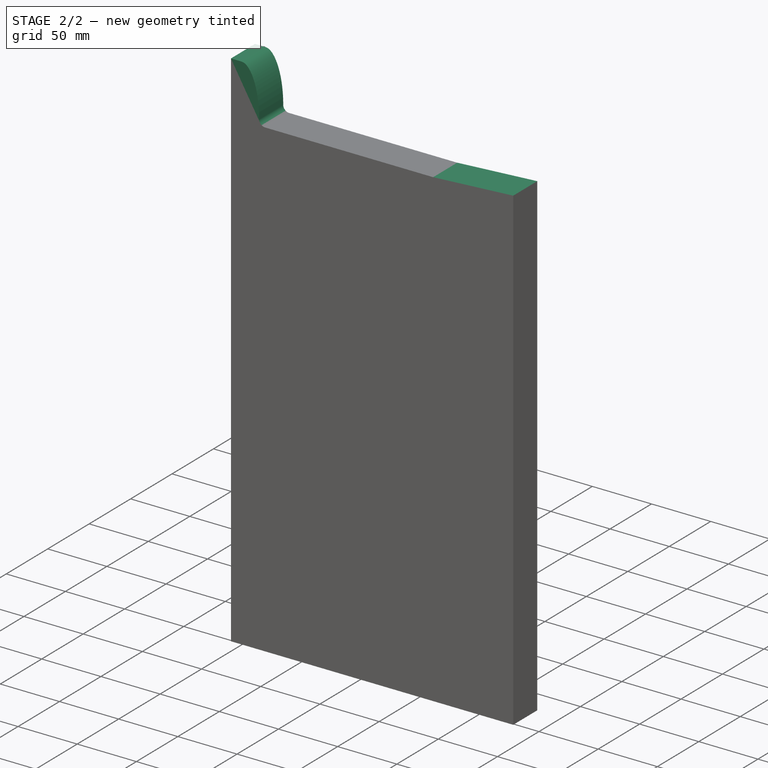
[diagram: stage 2 of 2 — iso view after this stage's code; geometry added in this stage tinted green]
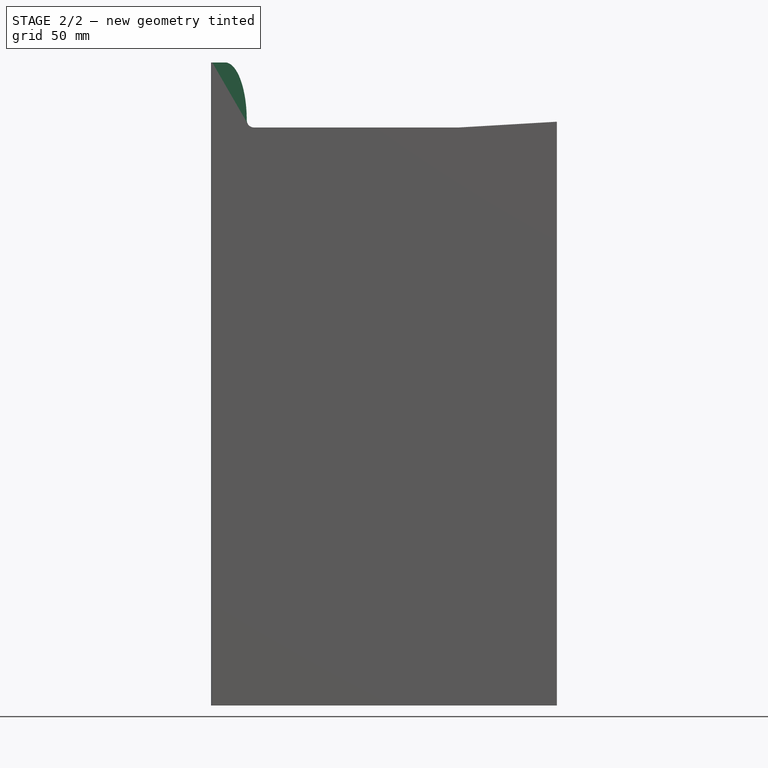
[diagram: stage 2 of 2 — front view after this stage's code; geometry added in this stage tinted green]
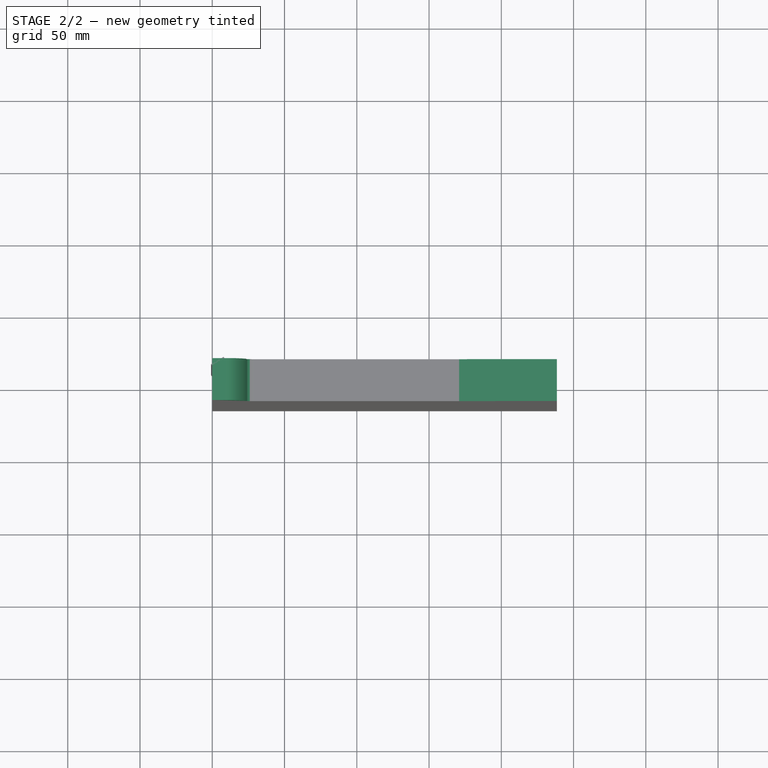
[diagram: stage 2 of 2 — top view after this stage's code; geometry added in this stage tinted green]
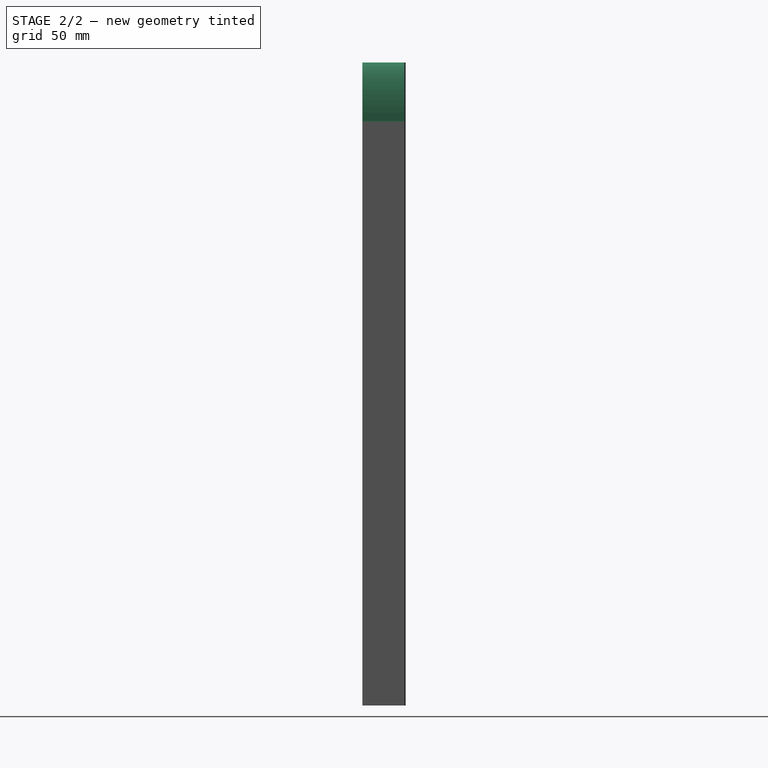
[diagram: stage 2 of 2 — right view after this stage's code; geometry added in this stage tinted green]
FEATURE [Part::Extrusion] Extrude002
  Base = -> Sketch001
  Dir = (0,-1,2e-16)
  DirMode = 2
  FaceMakerClass = Part::FaceMakerBullseye
  FaceMakerMode = 3
  LengthFwd = 29
  LengthRev = 0
  Solid = true
  Symmetric = true
  expr: LengthFwd = <<Extrude001>>.LengthFwd
FEATURE [Part::MultiFuse] Fusion  label="basin_cut"
  Refine = true
  Shapes = -> [Extrude001,Extrude002]
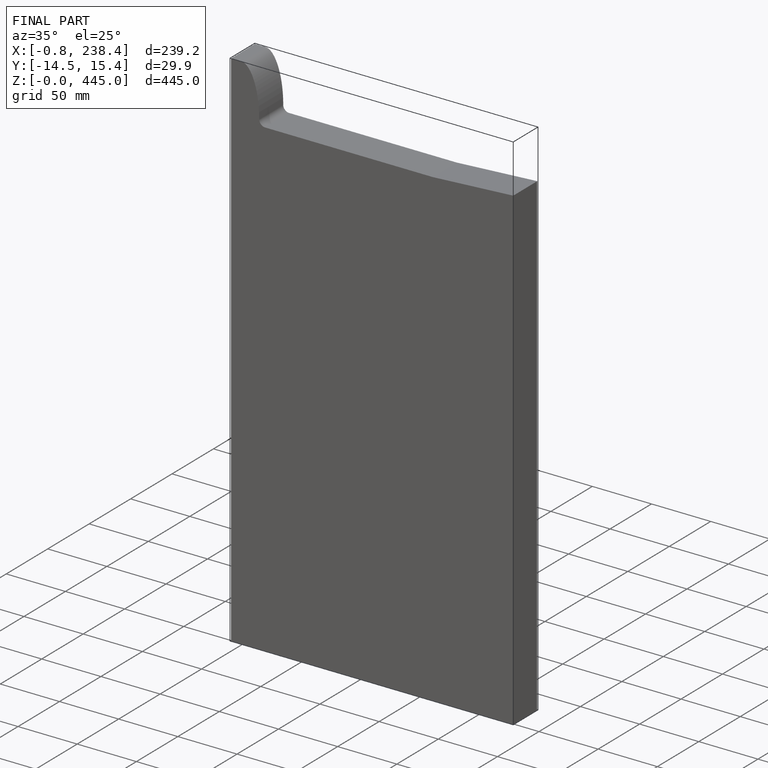
[diagram: finished part — iso view with bounding-box wireframe]
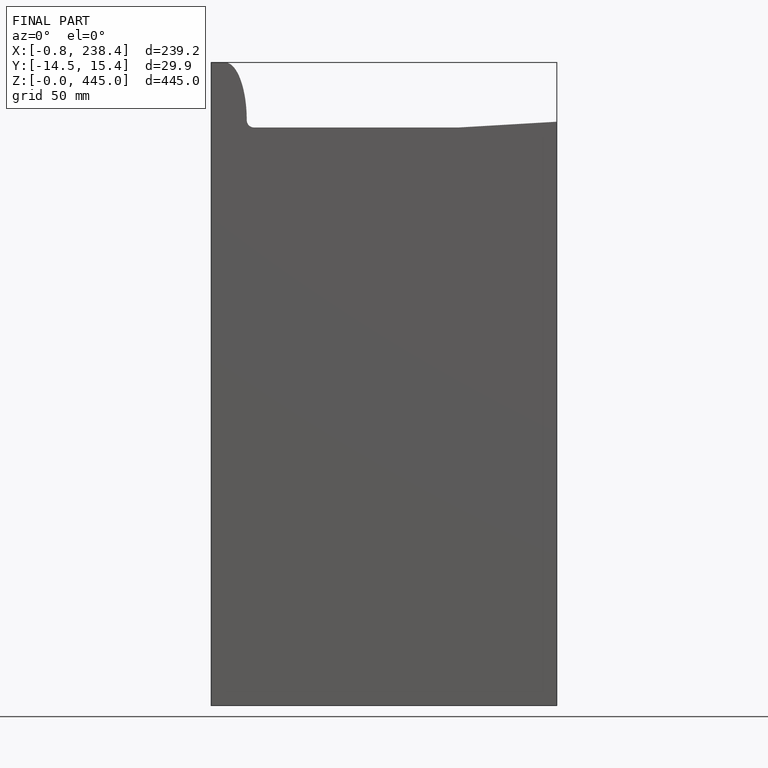
[diagram: finished part — front view with bounding-box wireframe]
